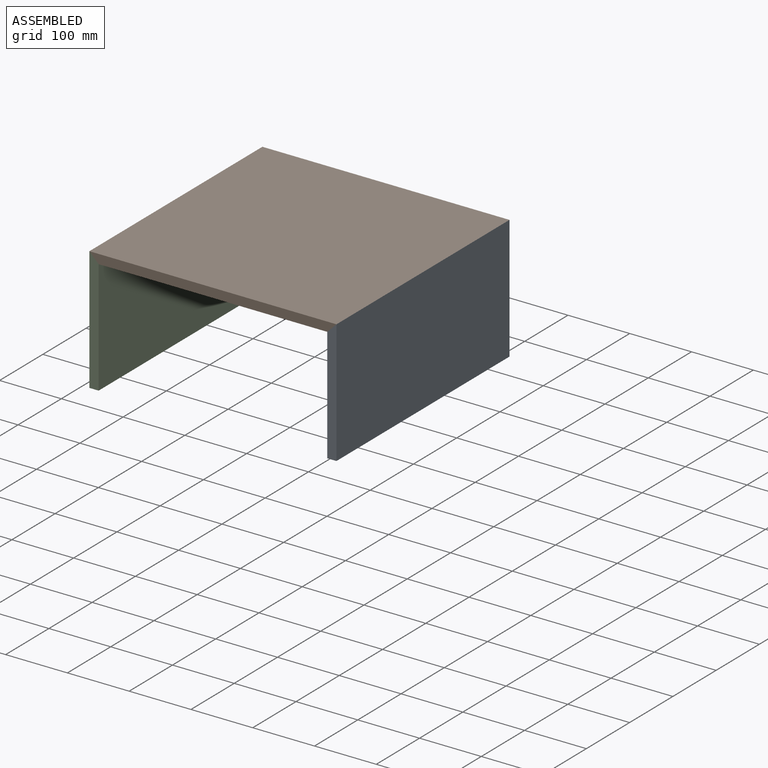
[diagram: assembled view]
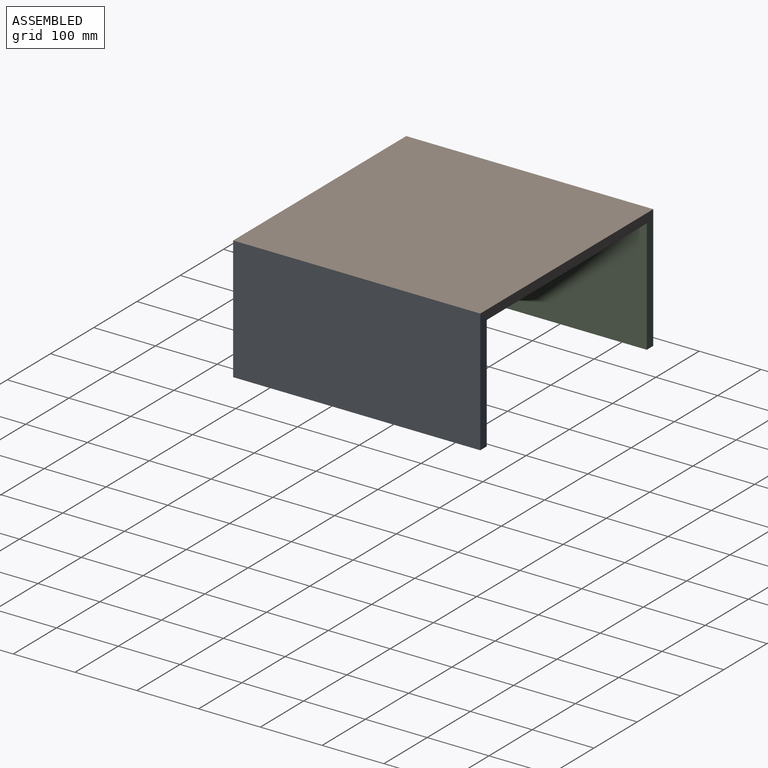
[diagram: assembled view, second angle]
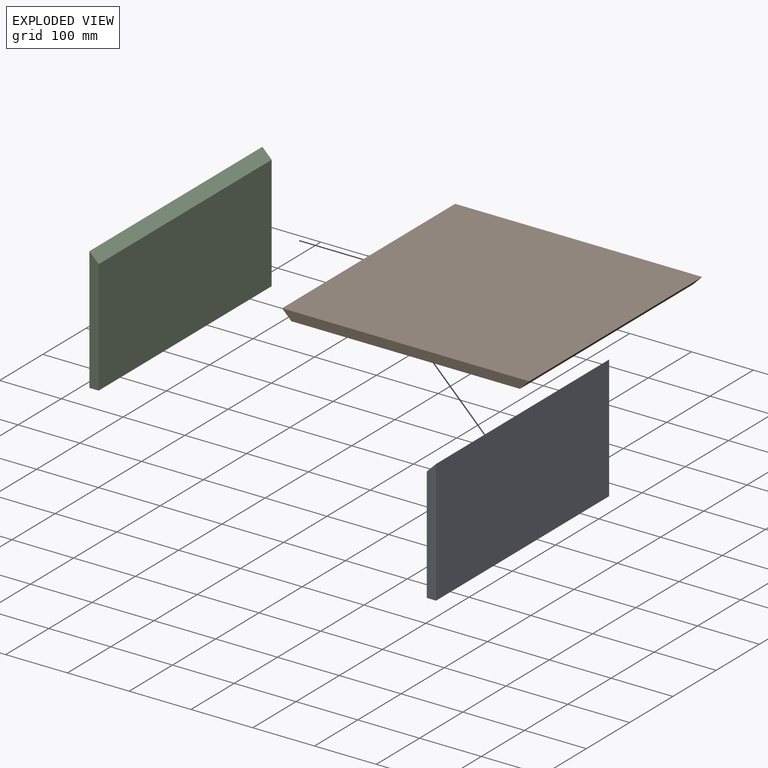
[diagram: exploded view]
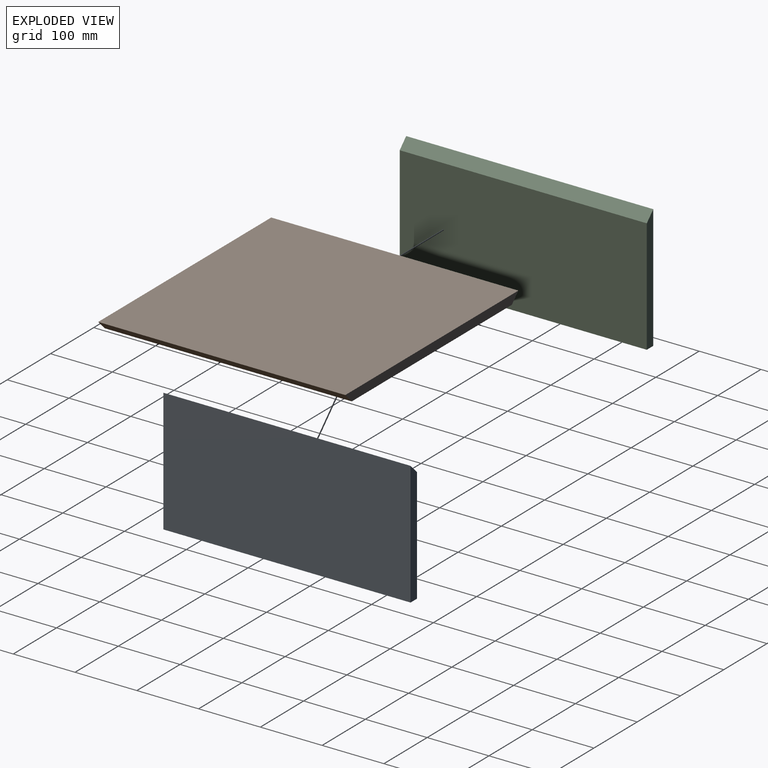
[diagram: exploded view, second angle]
ASSEMBLY  parts=3 mates=2
PART A: 6 faces, bbox 15x400x200 mm
  f0: plane 400x15mm, normal (0,0,-1), area 6000mm2, adj f1,f2,f3,f4
  f1: plane 200x15mm, normal (0,1,0), area 2887.5mm2, adj f0,f3,f4,f5
  f2: plane 200x15mm, normal (0,-1,0), area 2887.5mm2, adj f0,f3,f4,f5
  f3: plane 400x200mm, normal (1,0,0), area 80000mm2, adj f0,f1,f2,f5
  f4: plane 400x185mm, normal (-1,0,0), area 74000mm2, adj f0,f1,f2,f5
  f5: plane 400x15mm, normal (-0.71,0,0.71), area 8485.3mm2, adj f1,f2,f3,f4
PART B: 6 faces, bbox 400x400x15 mm
  f0: plane 400x15mm, normal (0,1,0), area 5775mm2, adj f2,f3,f4,f5
  f1: plane 400x15mm, normal (0,-1,0), area 5775mm2, adj f2,f3,f4,f5
  f2: plane 400x400mm, normal (0,0,1), area 160000mm2, adj f0,f1,f4,f5
  f3: plane 400x370mm, normal (0,0,-1), area 148000mm2, adj f0,f1,f4,f5
  f4: plane 400x15mm, normal (-0.71,0,-0.71), area 8485.3mm2, adj f0,f1,f2,f3
  f5: plane 400x15mm, normal (0.71,0,-0.71), area 8485.3mm2, adj f0,f1,f2,f3
PART C: same geometry as A
PLACE A t=(5.37,50.16,-155.45)mm
PLACE B t=(-179.63,50.16,-70.45)mm
PLACE C rot(axis=(0,0,1),180deg) t=(-364.63,50.16,-155.45)mm
MATE fastened B.f5 <-> A.f5  axis (0.71,0,-0.71) through (12.87,50.16,-62.95)mm
MATE fastened C.f5 <-> B.f4  axis (0.71,0,0.71) through (-372.13,50.16,-62.95)mm
